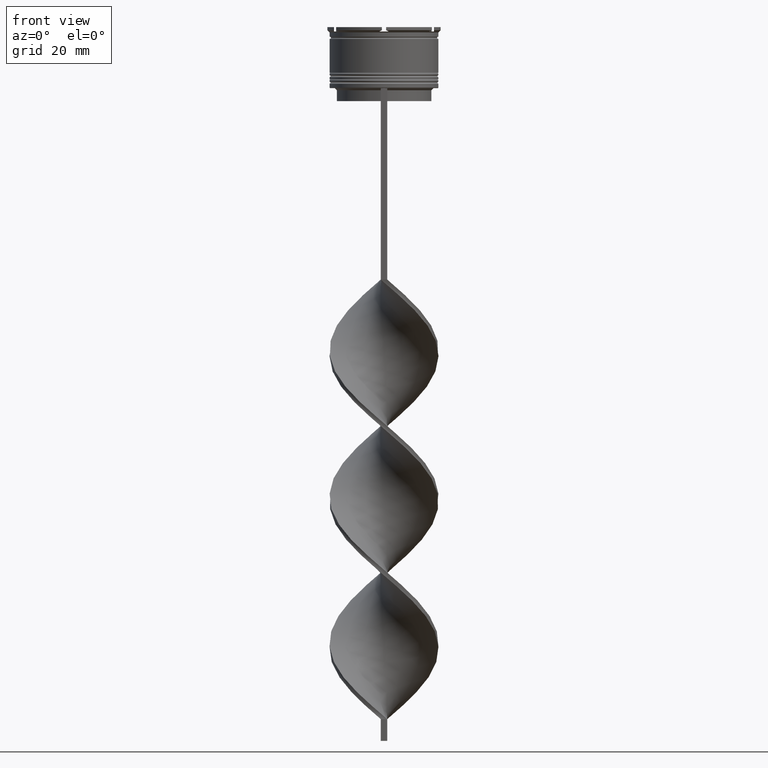
[diagram: clean part render]
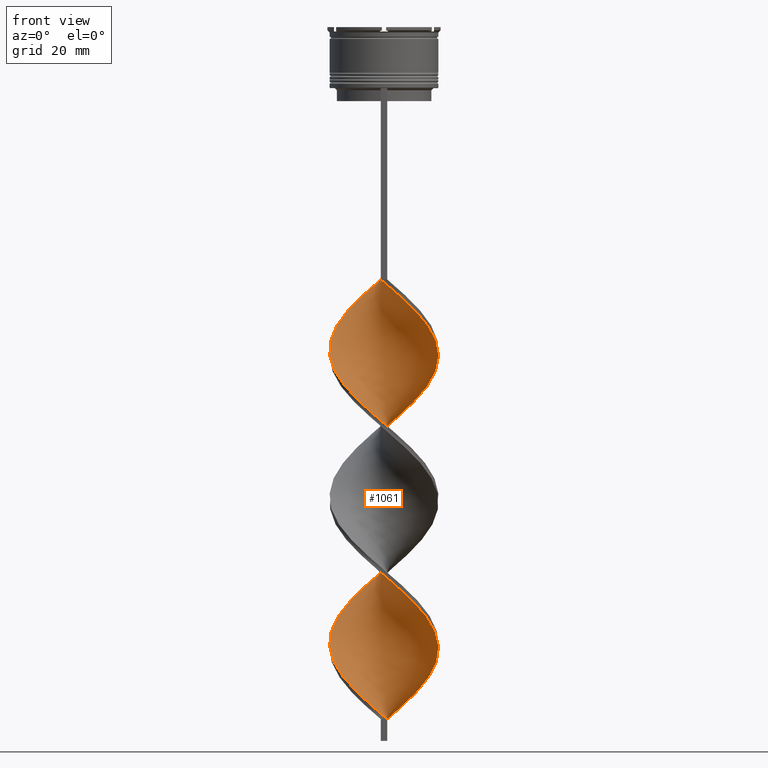
[diagram: same view with one face highlighted and labeled with its STEP entity id]
A machine part, front view. The second image highlights one B-rep face of the part: STEP entity #1061.
In plain terms, the highlighted face is a freeform B-spline surface patch.
Its self-contained STEP definition (entity closure, byte-faithful):
#6 = EDGE_CURVE ( 'NONE', #1071, #2113, #1179, .T. ) ;
#7 = CARTESIAN_POINT ( 'NONE',  ( 12.11996919947063311, 3.149420042465477021, -78.20000000000000284 ) ) ;
#23 = CARTESIAN_POINT ( 'NONE',  ( 7.954078399437126023, 9.671873490467488566, -152.2666666666666799 ) ) ;
#32 = CARTESIAN_POINT ( 'NONE',  ( 12.35312734465267681, -2.052497212371875435, -73.71111111111112280 ) ) ;
#45 = VERTEX_POINT ( 'NONE', #186 ) ;
#51 = CARTESIAN_POINT ( 'NONE',  ( 11.17548622105502254, -5.801146418745307010, -137.6777777777777487 ) ) ;
#66 = CARTESIAN_POINT ( 'NONE',  ( -12.50992003955415655, 0.5607143693194662770, -73.71111111111112280 ) ) ;
#67 = CARTESIAN_POINT ( 'NONE',  ( 7.954078399437126023, 9.671873490467488566, -152.2666666666666799 ) ) ;
#74 = CARTESIAN_POINT ( 'NONE',  ( 1.865285434671637432, -12.38277877728589260, -60.24444444444444713 ) ) ;
#83 = CARTESIAN_POINT ( 'NONE',  ( -11.65644370790820972, -4.576004816908207040, -78.20000000000000284 ) ) ;
#89 = CARTESIAN_POINT ( 'NONE',  ( -3.332506835772345077, 12.07091124105925317, -60.24444444444444713 ) ) ;
#107 = CARTESIAN_POINT ( 'NONE',  ( 11.65644370790820972, 4.576004816908206152, -111.8666666666666742 ) ) ;
#111 = CARTESIAN_POINT ( 'NONE',  ( 6.937523532635167633, -10.50788081788356543, -97.27777777777779988 ) ) ;
#119 = CARTESIAN_POINT ( 'NONE',  ( 12.45098658456435992, 1.875559948311562142, -77.07777777777778283 ) ) ;
#127 = CARTESIAN_POINT ( 'NONE',  ( -7.954078399437124247, 9.671873490467490342, -132.0666666666666629 ) ) ;
#131 = CARTESIAN_POINT ( 'NONE',  ( -12.13740119476140045, -3.350863215071107515, -77.07777777777778283 ) ) ;
#132 = CARTESIAN_POINT ( 'NONE',  ( 12.56885349454395495, -0.7541312096726379144, -142.1666666666666856 ) ) ;
#137 = CARTESIAN_POINT ( 'NONE',  ( 9.791158273236575837, 7.806773960377678456, -150.0222222222222115 ) ) ;
#138 = CARTESIAN_POINT ( 'NONE',  ( -4.399048945215547235, 11.72437070283936222, -96.15555555555556566 ) ) ;
#145 = CARTESIAN_POINT ( 'NONE',  ( -12.13740119476140045, -3.350863215071107515, -144.4111111111111541 ) ) ;
#153 = CARTESIAN_POINT ( 'NONE',  ( -4.399048945215555229, -11.72437070283936045, -154.5111111111111200 ) ) ;
#163 = CARTESIAN_POINT ( 'NONE',  ( 10.61168328023406460, 6.777681757703949650, -81.56666666666666288 ) ) ;
#171 = CARTESIAN_POINT ( 'NONE',  ( -7.849775853840625039, -9.845090710256194200, -151.1444444444444457 ) ) ;
#176 = CARTESIAN_POINT ( 'NONE',  ( -3.332506835772345077, 12.07091124105925317, -127.5777777777777828 ) ) ;
#183 = CARTESIAN_POINT ( 'NONE',  ( 3.166767928522319586, -12.18672937812252322, -128.7000000000000171 ) ) ;
#186 = CARTESIAN_POINT ( 'NONE',  ( 0.7500000000000013323, 12.50000000000000000, -159.0000000000000000 ) ) ;
#190 = CARTESIAN_POINT ( 'NONE',  ( 5.631329961908790871, 11.26201202755619768, -119.7222222222222143 ) ) ;
#193 = CARTESIAN_POINT ( 'NONE',  ( -11.78895181437690276, 4.423280136619393232, -137.6777777777777487 ) ) ;
#201 = CARTESIAN_POINT ( 'NONE',  ( 11.78895181437690276, 4.423280136619390568, -79.32222222222222285 ) ) ;
#207 = CARTESIAN_POINT ( 'NONE',  ( -5.631329961908789983, -11.26201202755619768, -153.3888888888889142 ) ) ;
#210 = CARTESIAN_POINT ( 'NONE',  ( 12.45098658456436169, -1.875559948311570357, -106.2555555555555742 ) ) ;
#220 = CARTESIAN_POINT ( 'NONE',  ( 12.11996919947063311, 3.149420042465477021, -145.5333333333333599 ) ) ;
#229 = CARTESIAN_POINT ( 'NONE',  ( 3.166767928522322695, 12.18672937812252322, -121.9666666666666544 ) ) ;
#289 = CARTESIAN_POINT ( 'NONE',  ( 0.7499999999999983347, -12.50000000000000000, -159.0000000000000000 ) ) ;
#297 = CARTESIAN_POINT ( 'NONE',  ( 1.865285434671637432, -12.38277877728589260, -60.24444444444444713 ) ) ;
#318 = FACE_OUTER_BOUND ( 'NONE', #2827, .T. ) ;
#332 = CARTESIAN_POINT ( 'NONE',  ( -3.166767928522321363, -12.18672937812252499, -88.29999999999998295 ) ) ;
#358 = CARTESIAN_POINT ( 'NONE',  ( -5.631329961908789983, -11.26201202755619768, -86.05555555555557135 ) ) ;
#364 = CARTESIAN_POINT ( 'NONE',  ( -12.45098658456435992, 1.875559948311566139, -72.58888888888890278 ) ) ;
#379 = CARTESIAN_POINT ( 'NONE',  ( 9.725148873555950146, 7.997891686931350996, -115.2333333333333343 ) ) ;
#386 = CARTESIAN_POINT ( 'NONE',  ( -8.970633266239078196, 8.835866163051415256, -65.85555555555555429 ) ) ;
#387 = CARTESIAN_POINT ( 'NONE',  ( 10.61168328023406637, 6.777681757703949650, -148.8999999999999488 ) ) ;
#400 = CARTESIAN_POINT ( 'NONE',  ( -1.865285434671642761, -12.38277877728589083, -89.42222222222223138 ) ) ;
#406 = CARTESIAN_POINT ( 'NONE',  ( 12.45098658456435992, 1.875559948311562142, -144.4111111111111541 ) ) ;
#420 = CARTESIAN_POINT ( 'NONE',  ( 11.20031754730548101, -5.600480947161677214, -102.8888888888888857 ) ) ;
#424 = CARTESIAN_POINT ( 'NONE',  ( -7.849775853840625039, -9.845090710256192423, -83.81111111111111711 ) ) ;
#427 = CARTESIAN_POINT ( 'NONE',  ( 6.937523532635175627, 10.50788081788355832, -153.3888888888889142 ) ) ;
#437 = CARTESIAN_POINT ( 'NONE',  ( 2.063802940820959275, 12.42117182355074334, -90.54444444444445139 ) ) ;
#445 = CARTESIAN_POINT ( 'NONE',  ( -9.791158273236570508, 7.806773960377682897, -134.3111111111111313 ) ) ;
#451 = CARTESIAN_POINT ( 'NONE',  ( 9.725148873555946594, -7.997891686931353661, -135.4333333333333371 ) ) ;
#460 = CARTESIAN_POINT ( 'NONE',  ( 11.17548622105502076, -5.801146418745307898, -70.34444444444444855 ) ) ;
#469 = CARTESIAN_POINT ( 'NONE',  ( 0.7499999999999983347, -12.50000000000000000, -159.0000000000000000 ) ) ;
#473 = CARTESIAN_POINT ( 'NONE',  ( -2.063802940820955723, 12.42117182355074334, -126.4555555555555770 ) ) ;
#478 = CARTESIAN_POINT ( 'NONE',  ( 3.332506835772350406, 12.07091124105925140, -156.7555555555555600 ) ) ;
#479 = CARTESIAN_POINT ( 'NONE',  ( 10.45031754730548279, -6.899519052838330779, -69.22222222222222854 ) ) ;
#484 = CARTESIAN_POINT ( 'NONE',  ( -5.769367131679452143, 11.11426573822566155, -129.8222222222222229 ) ) ;
#501 = CARTESIAN_POINT ( 'NONE',  ( 0.5638029408209559445, -12.57882817644925844, -126.4555555555555770 ) ) ;
#508 = CARTESIAN_POINT ( 'NONE',  ( -12.35312734465267859, -2.052497212371871438, -143.2888888888889198 ) ) ;
#512 = CARTESIAN_POINT ( 'NONE',  ( -11.65644370790820972, -4.576004816908207040, -145.5333333333333599 ) ) ;
#521 = CARTESIAN_POINT ( 'NONE',  ( -12.13740119476139867, 3.350863215071115508, -106.2555555555555742 ) ) ;
#530 = CARTESIAN_POINT ( 'NONE',  ( -0.5638029408209594973, -12.57882817644925844, -157.8777777777777942 ) ) ;
#537 = CARTESIAN_POINT ( 'NONE',  ( 12.56885349454395495, -0.7541312096726379144, -142.1666666666666856 ) ) ;
#578 = CARTESIAN_POINT ( 'NONE',  ( 4.601210730723739317, 11.72065065856775945, -88.29999999999998295 ) ) ;
#607 = CARTESIAN_POINT ( 'NONE',  ( 2.063802940820959275, 12.42117182355074334, -90.54444444444445139 ) ) ;
#649 = CARTESIAN_POINT ( 'NONE',  ( -8.970633266239078196, 8.835866163051415256, -65.85555555555555429 ) ) ;
#655 = CARTESIAN_POINT ( 'NONE',  ( 5.631329961908785542, -11.26201202755620123, -63.61111111111111427 ) ) ;
#656 = ORIENTED_EDGE ( 'NONE', *, *, #6, .T. ) ;
#667 = CARTESIAN_POINT ( 'NONE',  ( 11.78895181437689743, -4.423280136619401226, -104.0111111111111200 ) ) ;
#672 = CARTESIAN_POINT ( 'NONE',  ( -6.937523532635176515, -10.50788081788355832, -119.7222222222222143 ) ) ;
#690 = CARTESIAN_POINT ( 'NONE',  ( 0.7499999999999983347, -12.50000000000000000, -91.66666666666667140 ) ) ;
#699 = CARTESIAN_POINT ( 'NONE',  ( 6.740552907874703514, -10.55355136890619860, -132.0666666666666629 ) ) ;
#715 = CARTESIAN_POINT ( 'NONE',  ( 8.970633266239074644, -8.835866163051417033, -99.52222222222223991 ) ) ;
#717 = CARTESIAN_POINT ( 'NONE',  ( -9.791158273236577614, -7.806773960377676680, -116.3555555555555685 ) ) ;
#728 = CARTESIAN_POINT ( 'NONE',  ( -12.56885349454395495, -0.7541312096726363601, -74.83333333333334281 ) ) ;
#732 = CARTESIAN_POINT ( 'NONE',  ( -12.11996919947063134, 3.149420042465478353, -71.46666666666668277 ) ) ;
#733 = CARTESIAN_POINT ( 'NONE',  ( -10.61168328023406815, -6.777681757703947873, -115.2333333333333343 ) ) ;
#755 = CARTESIAN_POINT ( 'NONE',  ( -11.17548622105502076, -5.801146418745304345, -79.32222222222222285 ) ) ;
#757 = CARTESIAN_POINT ( 'NONE',  ( 5.631329961908785542, -11.26201202755620123, -130.9444444444444287 ) ) ;
#758 = CARTESIAN_POINT ( 'NONE',  ( 0.7499999999999983347, -12.50000000000000000, -159.0000000000000000 ) ) ;
#769 = CARTESIAN_POINT ( 'NONE',  ( -6.937523532635175627, -10.50788081788355832, -119.7222222222222143 ) ) ;
#778 = CARTESIAN_POINT ( 'NONE',  ( -11.78895181437690276, 4.423280136619394121, -137.6777777777777487 ) ) ;
#782 = CARTESIAN_POINT ( 'NONE',  ( -6.937523532635170298, 10.50788081788356187, -63.61111111111112137 ) ) ;
#783 = CARTESIAN_POINT ( 'NONE',  ( -0.7499999999999997780, 12.50000000000000000, -58.00000000000000000 ) ) ;
#790 = CARTESIAN_POINT ( 'NONE',  ( -3.166767928522318254, 12.18672937812252499, -95.03333333333331723 ) ) ;
#797 = CARTESIAN_POINT ( 'NONE',  ( -10.45031754730548457, -6.899519052838326338, -147.7777777777777715 ) ) ;
#805 = CARTESIAN_POINT ( 'NONE',  ( 9.791158273236575837, 7.806773960377678456, -82.68888888888889710 ) ) ;
#818 = CARTESIAN_POINT ( 'NONE',  ( 12.11996919947063134, -3.149420042465480130, -105.1333333333333400 ) ) ;
#830 = CARTESIAN_POINT ( 'NONE',  ( 12.13740119476140045, -3.350863215071111068, -72.58888888888890278 ) ) ;
#837 = CARTESIAN_POINT ( 'NONE',  ( -1.865285434671642761, -12.38277877728589083, -156.7555555555555600 ) ) ;
#842 = CARTESIAN_POINT ( 'NONE',  ( -9.791158273236570508, 7.806773960377682897, -134.3111111111111313 ) ) ;
#850 = CARTESIAN_POINT ( 'NONE',  ( -11.78895181437690454, -4.423280136619386127, -112.9888888888888943 ) ) ;
#860 = CARTESIAN_POINT ( 'NONE',  ( 11.20031754730548101, -5.600480947161677214, -102.8888888888888857 ) ) ;
#869 = CARTESIAN_POINT ( 'NONE',  ( 12.35312734465267681, -2.052497212371875435, -141.0444444444444514 ) ) ;
#878 = ORIENTED_EDGE ( 'NONE', *, *, #4118, .F. ) ;
#881 = CARTESIAN_POINT ( 'NONE',  ( -10.61168328023406637, 6.777681757703951426, -135.4333333333333371 ) ) ;
#910 = CARTESIAN_POINT ( 'NONE',  ( 4.399048945215551676, -11.72437070283936222, -62.48888888888889426 ) ) ;
#942 = CARTESIAN_POINT ( 'NONE',  ( -1.865285434671634324, 12.38277877728589260, -93.91111111111111143 ) ) ;
#965 = CARTESIAN_POINT ( 'NONE',  ( 6.937523532635175627, 10.50788081788355832, -86.05555555555557135 ) ) ;
#981 = CARTESIAN_POINT ( 'NONE',  ( 3.332506835772342857, -12.07091124105925317, -93.91111111111111143 ) ) ;
#1003 = CARTESIAN_POINT ( 'NONE',  ( 11.17548622105502432, 5.801146418745299016, -112.9888888888888943 ) ) ;
#1006 = CARTESIAN_POINT ( 'NONE',  ( 2.063802940820950838, -12.42117182355074689, -92.78888888888889142 ) ) ;
#1027 = CARTESIAN_POINT ( 'NONE',  ( 7.954078399437124247, -9.671873490467490342, -98.40000000000001990 ) ) ;
#1040 = CARTESIAN_POINT ( 'NONE',  ( -11.78895181437690276, 4.423280136619394121, -70.34444444444443434 ) ) ;
#1045 = CARTESIAN_POINT ( 'NONE',  ( -12.11996919947063311, -3.149420042465475689, -111.8666666666666742 ) ) ;
#1061 = ADVANCED_FACE ( 'NONE', ( #318 ), #3141, .T. ) ;
#1063 = CARTESIAN_POINT ( 'NONE',  ( -5.631329961908789983, -11.26201202755619946, -86.05555555555557135 ) ) ;
#1070 = CARTESIAN_POINT ( 'NONE',  ( -7.954078399437126912, -9.671873490467486789, -118.6000000000000085 ) ) ;
#1071 = VERTEX_POINT ( 'NONE', #3614 ) ;
#1079 = CARTESIAN_POINT ( 'NONE',  ( -12.50992003955415655, 0.5607143693194662770, -141.0444444444444514 ) ) ;
#1084 = CARTESIAN_POINT ( 'NONE',  ( -5.769367131679452143, 11.11426573822566155, -62.48888888888889426 ) ) ;
#1086 = CARTESIAN_POINT ( 'NONE',  ( 3.332506835772350406, 12.07091124105925140, -156.7555555555555600 ) ) ;
#1095 = CARTESIAN_POINT ( 'NONE',  ( 6.937523532635174739, 10.50788081788355832, -153.3888888888889142 ) ) ;
#1096 = CARTESIAN_POINT ( 'NONE',  ( 11.20031754730548457, 5.600480947161669221, -80.44444444444445708 ) ) ;
#1108 = CARTESIAN_POINT ( 'NONE',  ( 11.78895181437689743, -4.423280136619400338, -104.0111111111111057 ) ) ;
#1115 = CARTESIAN_POINT ( 'NONE',  ( -12.56885349454395495, 0.7541312096726393577, -108.5000000000000000 ) ) ;
#1125 = CARTESIAN_POINT ( 'NONE',  ( 11.17548622105502254, 5.801146418745299904, -112.9888888888888943 ) ) ;
#1132 = CARTESIAN_POINT ( 'NONE',  ( 6.740552907874703514, -10.55355136890619860, -132.0666666666666629 ) ) ;
#1139 = CARTESIAN_POINT ( 'NONE',  ( 0.5638029408209667137, 12.57882817644926021, -124.2111111111111370 ) ) ;
#1145 = CARTESIAN_POINT ( 'NONE',  ( -8.787462363698287149, -8.921491198593770378, -150.0222222222222115 ) ) ;
#1155 = CARTESIAN_POINT ( 'NONE',  ( -5.631329961908782877, 11.26201202755620479, -97.27777777777779988 ) ) ;
#1176 = CARTESIAN_POINT ( 'NONE',  ( 11.78895181437690276, 4.423280136619390568, -146.6555555555555657 ) ) ;
#1179 = LINE ( 'NONE', #1493, #2536 ) ;
#1185 = CARTESIAN_POINT ( 'NONE',  ( -12.50992003955415655, 0.5607143693194662770, -141.0444444444444514 ) ) ;
#1211 = CARTESIAN_POINT ( 'NONE',  ( 9.725148873555946594, -7.997891686931353661, -68.10000000000002274 ) ) ;
#1230 = CARTESIAN_POINT ( 'NONE',  ( 12.45098658456435992, 1.875559948311562142, -77.07777777777778283 ) ) ;
#1249 = CARTESIAN_POINT ( 'NONE',  ( 7.849775853840622375, -9.845090710256195976, -65.85555555555555429 ) ) ;
#1267 = CARTESIAN_POINT ( 'NONE',  ( -5.631329961908782877, 11.26201202755620123, -97.27777777777778567 ) ) ;
#1277 = ORIENTED_EDGE ( 'NONE', *, *, #3540, .F. ) ;
#1293 = CARTESIAN_POINT ( 'NONE',  ( -4.399048945215547235, 11.72437070283936222, -96.15555555555556566 ) ) ;
#1309 = CARTESIAN_POINT ( 'NONE',  ( 12.50992003955415832, -0.5607143693194732714, -107.3777777777777942 ) ) ;
#1312 = CARTESIAN_POINT ( 'NONE',  ( -6.740552907874705291, -10.55355136890619683, -84.93333333333333712 ) ) ;
#1313 = CARTESIAN_POINT ( 'NONE',  ( 12.50992003955415832, 0.5607143693194618361, -143.2888888888889198 ) ) ;
#1326 = CARTESIAN_POINT ( 'NONE',  ( 12.13740119476140222, 3.350863215071099965, -110.7444444444444542 ) ) ;
#1330 = CARTESIAN_POINT ( 'NONE',  ( -10.45031754730548457, -6.899519052838326338, -80.44444444444445708 ) ) ;
#1332 = CARTESIAN_POINT ( 'NONE',  ( -12.13740119476139867, 3.350863215071115508, -106.2555555555555742 ) ) ;
#1338 = CARTESIAN_POINT ( 'NONE',  ( 3.166767928522319586, -12.18672937812252322, -61.36666666666666003 ) ) ;
#1346 = CARTESIAN_POINT ( 'NONE',  ( -10.45031754730548457, -6.899519052838326338, -80.44444444444445708 ) ) ;
#1347 = CARTESIAN_POINT ( 'NONE',  ( -0.7499999999999997780, 12.50000000000000000, -58.00000000000000000 ) ) ;
#1376 = CARTESIAN_POINT ( 'NONE',  ( -12.56885349454395495, -0.7541312096726363601, -74.83333333333332860 ) ) ;
#1377 = CARTESIAN_POINT ( 'NONE',  ( -9.725148873555944817, 7.997891686931354549, -101.7666666666666515 ) ) ;
#1386 = CARTESIAN_POINT ( 'NONE',  ( -10.61168328023406637, -6.777681757703947873, -115.2333333333333343 ) ) ;
#1395 = CARTESIAN_POINT ( 'NONE',  ( 1.865285434671644538, 12.38277877728589083, -123.0888888888888886 ) ) ;
#1399 = CARTESIAN_POINT ( 'NONE',  ( -2.063802940820955723, 12.42117182355074334, -59.12222222222222712 ) ) ;
#1400 = CARTESIAN_POINT ( 'NONE',  ( 12.11996919947063311, 3.149420042465477021, -145.5333333333333599 ) ) ;
#1407 = CARTESIAN_POINT ( 'NONE',  ( 8.970633266239079973, 8.835866163051411704, -151.1444444444444457 ) ) ;
#1408 = CARTESIAN_POINT ( 'NONE',  ( -8.787462363698281820, 8.921491198593777483, -100.6444444444444599 ) ) ;
#1418 = CARTESIAN_POINT ( 'NONE',  ( -5.631329961908789983, -11.26201202755619946, -153.3888888888889142 ) ) ;
#1428 = CARTESIAN_POINT ( 'NONE',  ( 11.20031754730548457, 5.600480947161669221, -147.7777777777777715 ) ) ;
#1429 = CARTESIAN_POINT ( 'NONE',  ( -11.65644370790820794, 4.576004816908209705, -105.1333333333333400 ) ) ;
#1437 = CARTESIAN_POINT ( 'NONE',  ( -0.5638029408209594973, -12.57882817644926021, -157.8777777777777942 ) ) ;
#1450 = CARTESIAN_POINT ( 'NONE',  ( 4.399048945215551676, -11.72437070283936222, -129.8222222222222229 ) ) ;
#1456 = CARTESIAN_POINT ( 'NONE',  ( -8.970633266239078196, 8.835866163051415256, -133.1888888888889255 ) ) ;
#1460 = CARTESIAN_POINT ( 'NONE',  ( -4.601210730723736653, 11.72065065856775767, -128.7000000000000171 ) ) ;
#1468 = CARTESIAN_POINT ( 'NONE',  ( -1.865285434671634324, 12.38277877728589260, -93.91111111111111143 ) ) ;
#1471 = DIRECTION ( 'NONE',  ( 0.000000000000000000, 1.000000000000000000, 0.000000000000000000 ) ) ;
#1480 = CARTESIAN_POINT ( 'NONE',  ( 9.725148873555950146, 7.997891686931350108, -115.2333333333333343 ) ) ;
#1490 = CARTESIAN_POINT ( 'NONE',  ( 12.45098658456435992, 1.875559948311562142, -144.4111111111111256 ) ) ;
#1493 = CARTESIAN_POINT ( 'NONE',  ( -0.7499999999999997780, -12.50000000000000000, -58.00000000000000000 ) ) ;
#1504 = CARTESIAN_POINT ( 'NONE',  ( 8.787462363698288925, 8.921491198593768601, -116.3555555555555685 ) ) ;
#1526 = CARTESIAN_POINT ( 'NONE',  ( 3.166767928522319586, -12.18672937812252499, -61.36666666666666003 ) ) ;
#1598 = CARTESIAN_POINT ( 'NONE',  ( -12.50992003955415655, 0.5607143693194662770, -73.71111111111112280 ) ) ;
#1625 = CARTESIAN_POINT ( 'NONE',  ( 12.56885349454395495, 0.7541312096726349168, -108.5000000000000000 ) ) ;
#1632 = CARTESIAN_POINT ( 'NONE',  ( -12.35312734465267503, 2.052497212371882540, -107.3777777777777942 ) ) ;
#1645 = CARTESIAN_POINT ( 'NONE',  ( -4.601210730723737541, 11.72065065856775945, -61.36666666666666003 ) ) ;
#1649 = CARTESIAN_POINT ( 'NONE',  ( -11.20031754730548279, 5.600480947161673662, -69.22222222222222854 ) ) ;
#1650 = CARTESIAN_POINT ( 'NONE',  ( -12.50992003955415832, -0.5607143693194575063, -109.6222222222222342 ) ) ;
#1662 = CARTESIAN_POINT ( 'NONE',  ( -9.791158273236570508, 7.806773960377682897, -66.97777777777777430 ) ) ;
#1666 = CARTESIAN_POINT ( 'NONE',  ( 4.601210730723734876, -11.72065065856775945, -95.03333333333331723 ) ) ;
#1684 = CARTESIAN_POINT ( 'NONE',  ( 12.45098658456436169, -1.875559948311570135, -106.2555555555555742 ) ) ;
#1693 = CARTESIAN_POINT ( 'NONE',  ( 9.791158273236575837, 7.806773960377678456, -150.0222222222222115 ) ) ;
#1703 = CARTESIAN_POINT ( 'NONE',  ( -7.849775853840619710, 9.845090710256194200, -99.52222222222223991 ) ) ;
#1710 = CARTESIAN_POINT ( 'NONE',  ( -4.601210730723737541, 11.72065065856775945, -128.6999999999999886 ) ) ;
#1714 = CARTESIAN_POINT ( 'NONE',  ( 12.13740119476140045, -3.350863215071111068, -139.9222222222222172 ) ) ;
#1719 = CARTESIAN_POINT ( 'NONE',  ( -0.5638029408209508375, 12.57882817644926199, -92.78888888888889142 ) ) ;
#1728 = CARTESIAN_POINT ( 'NONE',  ( -11.17548622105502254, -5.801146418745303457, -146.6555555555555657 ) ) ;
#1731 = CARTESIAN_POINT ( 'NONE',  ( 10.61168328023406460, -6.777681757703953203, -101.7666666666666515 ) ) ;
#1737 = CARTESIAN_POINT ( 'NONE',  ( 6.937523532635174739, 10.50788081788355832, -86.05555555555557135 ) ) ;
#1745 = CARTESIAN_POINT ( 'NONE',  ( -2.063802940820956167, 12.42117182355074334, -126.4555555555555628 ) ) ;
#1760 = CARTESIAN_POINT ( 'NONE',  ( -12.45098658456436169, -1.875559948311554592, -110.7444444444444542 ) ) ;
#1770 = CARTESIAN_POINT ( 'NONE',  ( 5.631329961908790871, 11.26201202755619946, -119.7222222222222143 ) ) ;
#1777 = CARTESIAN_POINT ( 'NONE',  ( 6.740552907874703514, -10.55355136890619860, -64.73333333333333428 ) ) ;
#1799 = CARTESIAN_POINT ( 'NONE',  ( 11.17548622105502076, -5.801146418745307898, -137.6777777777777487 ) ) ;
#1810 = CARTESIAN_POINT ( 'NONE',  ( -11.20031754730548279, 5.600480947161673662, -136.5555555555555713 ) ) ;
#1873 = CARTESIAN_POINT ( 'NONE',  ( -0.5638029408209509485, 12.57882817644926376, -92.78888888888889142 ) ) ;
#1908 = CARTESIAN_POINT ( 'NONE',  ( -5.769367131679452143, 11.11426573822566155, -62.48888888888889426 ) ) ;
#1924 = CARTESIAN_POINT ( 'NONE',  ( 5.769367131679455696, 11.11426573822565977, -154.5111111111111200 ) ) ;
#1927 = CARTESIAN_POINT ( 'NONE',  ( 9.791158273236570508, -7.806773960377686450, -100.6444444444444599 ) ) ;
#1933 = CARTESIAN_POINT ( 'NONE',  ( -4.601210730723740205, -11.72065065856775945, -121.9666666666666544 ) ) ;
#1951 = CARTESIAN_POINT ( 'NONE',  ( 8.787462363698288925, 8.921491198593768601, -116.3555555555555685 ) ) ;
#1957 = CARTESIAN_POINT ( 'NONE',  ( -0.7499999999999997780, 12.50000000000000000, -58.00000000000000000 ) ) ;
#1958 = CARTESIAN_POINT ( 'NONE',  ( 11.78895181437690276, 4.423280136619390568, -146.6555555555555657 ) ) ;
#1966 = CARTESIAN_POINT ( 'NONE',  ( 0.5638029408209559445, -12.57882817644925844, -59.12222222222222712 ) ) ;
#1978 = CARTESIAN_POINT ( 'NONE',  ( -9.791158273236570508, 7.806773960377682897, -66.97777777777777430 ) ) ;
#1979 = CARTESIAN_POINT ( 'NONE',  ( -8.970633266239085302, -8.835866163051408151, -117.4777777777777885 ) ) ;
#1990 = CARTESIAN_POINT ( 'NONE',  ( -11.20031754730548279, 5.600480947161673662, -69.22222222222222854 ) ) ;
#1994 = CARTESIAN_POINT ( 'NONE',  ( 1.865285434671637432, -12.38277877728589260, -127.5777777777777828 ) ) ;
#2001 = CARTESIAN_POINT ( 'NONE',  ( 0.7500000000000013323, 12.50000000000000000, -159.0000000000000000 ) ) ;
#2016 = CARTESIAN_POINT ( 'NONE',  ( -0.7499999999999997780, -12.50000000000000000, -125.3333333333333570 ) ) ;
#2024 = CARTESIAN_POINT ( 'NONE',  ( -5.769367131679462801, -11.11426573822565622, -120.8444444444444485 ) ) ;
#2032 = CARTESIAN_POINT ( 'NONE',  ( -11.65644370790820972, -4.576004816908207040, -145.5333333333333599 ) ) ;
#2037 = CARTESIAN_POINT ( 'NONE',  ( -11.65644370790820972, -4.576004816908207040, -78.20000000000000284 ) ) ;
#2038 = CARTESIAN_POINT ( 'NONE',  ( 2.063802940820959275, 12.42117182355074334, -157.8777777777777942 ) ) ;
#2046 = CARTESIAN_POINT ( 'NONE',  ( -10.45031754730548101, 6.899519052838334332, -102.8888888888888857 ) ) ;
#2053 = CARTESIAN_POINT ( 'NONE',  ( 4.399048945215562334, 11.72437070283935689, -120.8444444444444485 ) ) ;
#2056 = CARTESIAN_POINT ( 'NONE',  ( 4.399048945215562334, 11.72437070283935689, -120.8444444444444485 ) ) ;
#2066 = CARTESIAN_POINT ( 'NONE',  ( 3.332506835772350406, 12.07091124105925140, -89.42222222222223138 ) ) ;
#2074 = CARTESIAN_POINT ( 'NONE',  ( -8.787462363698287149, -8.921491198593770378, -150.0222222222222115 ) ) ;
#2078 = CARTESIAN_POINT ( 'NONE',  ( 10.45031754730548990, 6.899519052838320121, -114.1111111111111285 ) ) ;
#2089 = CARTESIAN_POINT ( 'NONE',  ( 12.56885349454395495, -0.7541312096726379144, -74.83333333333332860 ) ) ;
#2096 = CARTESIAN_POINT ( 'NONE',  ( -0.7499999999999997780, 12.50000000000000000, -125.3333333333333570 ) ) ;
#2099 = CARTESIAN_POINT ( 'NONE',  ( -11.17548622105502076, -5.801146418745304345, -146.6555555555555657 ) ) ;
#2109 = CARTESIAN_POINT ( 'NONE',  ( -12.50992003955415832, -0.5607143693194575063, -109.6222222222222342 ) ) ;
#2113 = VERTEX_POINT ( 'NONE', #1347 ) ;
#2120 = CARTESIAN_POINT ( 'NONE',  ( 12.56885349454395495, 0.7541312096726348058, -108.5000000000000000 ) ) ;
#2146 = CARTESIAN_POINT ( 'NONE',  ( 10.61168328023406637, 6.777681757703949650, -81.56666666666664867 ) ) ;
#2183 = CARTESIAN_POINT ( 'NONE',  ( 11.17548622105502254, -5.801146418745307010, -70.34444444444443434 ) ) ;
#2202 = CARTESIAN_POINT ( 'NONE',  ( 3.332506835772350406, 12.07091124105925140, -89.42222222222223138 ) ) ;
#2220 = CARTESIAN_POINT ( 'NONE',  ( -11.17548622105502254, -5.801146418745303457, -79.32222222222222285 ) ) ;
#2225 = CARTESIAN_POINT ( 'NONE',  ( -6.740552907874702626, 10.55355136890619860, -98.40000000000001990 ) ) ;
#2240 = CARTESIAN_POINT ( 'NONE',  ( 4.601210730723735765, -11.72065065856776123, -95.03333333333331723 ) ) ;
#2246 = CARTESIAN_POINT ( 'NONE',  ( -11.17548622105501721, 5.801146418745314115, -104.0111111111111200 ) ) ;
#2260 = CARTESIAN_POINT ( 'NONE',  ( -12.35312734465267859, -2.052497212371871438, -75.95555555555554861 ) ) ;
#2267 = CARTESIAN_POINT ( 'NONE',  ( 3.332506835772342857, -12.07091124105925317, -93.91111111111111143 ) ) ;
#2284 = CARTESIAN_POINT ( 'NONE',  ( -2.063802940820956167, 12.42117182355074334, -59.12222222222222712 ) ) ;
#2290 = CARTESIAN_POINT ( 'NONE',  ( 5.769367131679449479, -11.11426573822566510, -96.15555555555556566 ) ) ;
#2304 = CARTESIAN_POINT ( 'NONE',  ( -9.725148873555948370, -7.997891686931350996, -81.56666666666664867 ) ) ;
#2308 = CARTESIAN_POINT ( 'NONE',  ( -11.78895181437690276, 4.423280136619393232, -70.34444444444444855 ) ) ;
#2309 = CARTESIAN_POINT ( 'NONE',  ( -3.332506835772352183, -12.07091124105925140, -123.0888888888888886 ) ) ;
#2322 = CARTESIAN_POINT ( 'NONE',  ( -11.20031754730548279, 5.600480947161673662, -136.5555555555555713 ) ) ;
#2327 = CARTESIAN_POINT ( 'NONE',  ( -7.954078399437126912, -9.671873490467486789, -118.6000000000000085 ) ) ;
#2338 = CARTESIAN_POINT ( 'NONE',  ( 8.970633266239079973, 8.835866163051411704, -83.81111111111111711 ) ) ;
#2348 = CARTESIAN_POINT ( 'NONE',  ( -12.56885349454395495, -0.7541312096726363601, -142.1666666666666856 ) ) ;
#2356 = CARTESIAN_POINT ( 'NONE',  ( 0.7500000000000013323, 12.50000000000000000, -159.0000000000000000 ) ) ;
#2366 = CARTESIAN_POINT ( 'NONE',  ( 9.725148873555948370, -7.997891686931351884, -68.10000000000000853 ) ) ;
#2375 = CARTESIAN_POINT ( 'NONE',  ( 12.50992003955415832, -0.5607143693194732714, -107.3777777777777942 ) ) ;
#2381 = CARTESIAN_POINT ( 'NONE',  ( 2.063802940820959275, 12.42117182355074334, -157.8777777777777942 ) ) ;
#2382 = CARTESIAN_POINT ( 'NONE',  ( -12.35312734465267503, 2.052497212371882540, -107.3777777777777942 ) ) ;
#2392 = CARTESIAN_POINT ( 'NONE',  ( -12.35312734465267859, -2.052497212371871438, -143.2888888888889198 ) ) ;
#2402 = CARTESIAN_POINT ( 'NONE',  ( -3.332506835772352183, -12.07091124105925140, -123.0888888888888886 ) ) ;
#2415 = CARTESIAN_POINT ( 'NONE',  ( 12.13740119476140222, 3.350863215071099965, -110.7444444444444542 ) ) ;
#2431 = CARTESIAN_POINT ( 'NONE',  ( -11.17548622105501721, 5.801146418745314115, -104.0111111111111057 ) ) ;
#2450 = CARTESIAN_POINT ( 'NONE',  ( 11.65644370790820794, -4.576004816908208817, -138.8000000000000114 ) ) ;
#2460 = CARTESIAN_POINT ( 'NONE',  ( -12.13740119476140045, -3.350863215071107515, -144.4111111111111256 ) ) ;
#2489 = CARTESIAN_POINT ( 'NONE',  ( -0.7499999999999997780, -12.50000000000000000, -58.00000000000000000 ) ) ;
#2508 = CARTESIAN_POINT ( 'NONE',  ( 8.970633266239079973, 8.835866163051411704, -83.81111111111111711 ) ) ;
#2520 = CARTESIAN_POINT ( 'NONE',  ( 0.7500000000000003331, 4.166666666666667851, -159.0000000000000000 ) ) ;
#2527 = CARTESIAN_POINT ( 'NONE',  ( 11.20031754730548457, 5.600480947161669221, -80.44444444444445708 ) ) ;
#2536 = VECTOR ( 'NONE', #1471, 1000.000000000000000 ) ;
#2551 = CARTESIAN_POINT ( 'NONE',  ( 11.78895181437690276, 4.423280136619390568, -79.32222222222222285 ) ) ;
#2588 = CARTESIAN_POINT ( 'NONE',  ( -6.937523532635171186, 10.50788081788356187, -63.61111111111111427 ) ) ;
#2592 = CARTESIAN_POINT ( 'NONE',  ( -3.166767928522320918, -12.18672937812252322, -88.29999999999998295 ) ) ;
#2593 = CARTESIAN_POINT ( 'NONE',  ( 11.65644370790820794, -4.576004816908208817, -138.8000000000000114 ) ) ;
#2609 = CARTESIAN_POINT ( 'NONE',  ( -0.5638029408209594973, -12.57882817644925844, -90.54444444444445139 ) ) ;
#2610 = CARTESIAN_POINT ( 'NONE',  ( -11.65644370790820794, 4.576004816908209705, -105.1333333333333400 ) ) ;
#2623 = CARTESIAN_POINT ( 'NONE',  ( 5.769367131679449479, -11.11426573822566510, -96.15555555555556566 ) ) ;
#2630 = CARTESIAN_POINT ( 'NONE',  ( -10.45031754730548101, 6.899519052838334332, -102.8888888888888857 ) ) ;
#2635 = B_SPLINE_CURVE_WITH_KNOTS ( 'NONE', 3,
 ( #4082, #2520, #3764, #289 ),
 .UNSPECIFIED., .F., .F.,
 ( 4, 4 ),
 ( 0.000000000000000000, 1.000000000000000000 ),
 .UNSPECIFIED. ) ;
#2648 = CARTESIAN_POINT ( 'NONE',  ( -12.35312734465267859, -2.052497212371871438, -75.95555555555554861 ) ) ;
#2656 = CARTESIAN_POINT ( 'NONE',  ( 11.65644370790820794, -4.576004816908208817, -71.46666666666668277 ) ) ;
#2670 = CARTESIAN_POINT ( 'NONE',  ( 0.5638029408209559445, -12.57882817644926021, -126.4555555555555628 ) ) ;
#2679 = CARTESIAN_POINT ( 'NONE',  ( -11.20031754730548634, -5.600480947161663003, -114.1111111111111285 ) ) ;
#2694 = CARTESIAN_POINT ( 'NONE',  ( -3.166767928522320918, -12.18672937812252322, -155.6333333333333542 ) ) ;
#2701 = CARTESIAN_POINT ( 'NONE',  ( 4.601210730723738429, 11.72065065856775767, -155.6333333333333542 ) ) ;
#2702 = CARTESIAN_POINT ( 'NONE',  ( -9.725148873555946594, 7.997891686931353661, -101.7666666666666515 ) ) ;
#2722 = CARTESIAN_POINT ( 'NONE',  ( 5.769367131679455696, 11.11426573822565977, -87.17777777777779136 ) ) ;
#2728 = CARTESIAN_POINT ( 'NONE',  ( -10.61168328023406815, 6.777681757703951426, -135.4333333333333371 ) ) ;
#2732 = CARTESIAN_POINT ( 'NONE',  ( -8.970633266239078196, 8.835866163051415256, -133.1888888888889255 ) ) ;
#2740 = CARTESIAN_POINT ( 'NONE',  ( 5.631329961908785542, -11.26201202755620479, -63.61111111111112137 ) ) ;
#2753 = CARTESIAN_POINT ( 'NONE',  ( 0.7499999999999983347, -12.50000000000000000, -159.0000000000000000 ) ) ;
#2764 = CARTESIAN_POINT ( 'NONE',  ( 8.787462363698281820, -8.921491198593773930, -134.3111111111111313 ) ) ;
#2773 = CARTESIAN_POINT ( 'NONE',  ( -0.7499999999999997780, 12.50000000000000000, -125.3333333333333570 ) ) ;
#2793 = CARTESIAN_POINT ( 'NONE',  ( 12.13740119476140045, -3.350863215071111068, -72.58888888888890278 ) ) ;
#2814 = CARTESIAN_POINT ( 'NONE',  ( 5.769367131679455696, 11.11426573822565977, -87.17777777777779136 ) ) ;
#2827 = EDGE_LOOP ( 'NONE', ( #656, #3866, #1277, #878 ) ) ;
#2837 = CARTESIAN_POINT ( 'NONE',  ( 12.50992003955415832, 0.5607143693194618361, -75.95555555555554861 ) ) ;
#2845 =( BOUNDED_CURVE ( )  B_SPLINE_CURVE ( 2, ( #3568, #1966, #74, #1338, #3317, #2740, #1777, #3714, #3335, #2366, #479, #460, #2656, #830, #2973, #2089, #3057, #119, #3671, #201, #1096, #163, #805, #2338, #3654, #1737, #2722, #4031, #2066, #437, #3015, #1719, #1468, #790, #138, #1155, #3381, #1703, #1408, #2702, #2046, #2431, #1429, #521, #2382, #1115, #2109, #1760, #3631, #850, #2679, #1386, #3995, #3947, #1070, #769, #2024, #2993, #2402, #3974, #3360, #501, #3040, #183, #1450, #4011, #1132, #3692, #2764, #4057, #3398, #1799, #2450, #3732, #869, #537, #3077, #1490, #220, #1176, #1428, #3014, #137, #1407, #23, #1095, #1924, #2701, #478, #2381, #2001 ),
 .UNSPECIFIED., .F., .T. ) 
 B_SPLINE_CURVE_WITH_KNOTS ( ( 3, 2, 2, 2, 2, 2, 2, 2, 2, 2, 2, 2, 2, 2, 2, 2, 2, 2, 2, 2, 2, 2, 2, 2, 2, 2, 2, 2, 2, 2, 2, 2, 2, 2, 2, 2, 2, 2, 2, 2, 2, 2, 2, 2, 2, 3 ),
 ( 0.000000000000000000, 0.01666666666666666644, 0.03333333333333333287, 0.05000000000000000971, 0.06666666666666666574, 0.08333333333333332871, 0.1000000000000000194, 0.1166666666666666546, 0.1333333333333333315, 0.1499999999999999944, 0.1666666666666666574, 0.1833333333333333204, 0.2000000000000000389, 0.2166666666666666741, 0.2333333333333333093, 0.2500000000000000000, 0.2666666666666666630, 0.2833333333333333259, 0.2999999999999999889, 0.3166666666666666519, 0.3333333333333333148, 0.3499999999999999223, 0.3666666666666666408, 0.3833333333333333592, 0.4000000000000000777, 0.4166666666666666852, 0.4333333333333333481, 0.4500000000000000111, 0.4666666666666666186, 0.4833333333333333370, 0.5000000000000000000, 0.5166666666666667185, 0.5333333333333333259, 0.5500000000000000444, 0.5666666666666666519, 0.5833333333333333703, 0.5999999999999999778, 0.6166666666666666963, 0.6333333333333333037, 0.6500000000000000222, 0.6666666666666666297, 0.6833333333333332371, 0.6999999999999998446, 0.7166666666666666741, 0.7333333333333332815, 0.7500000000000000000 ),
 .UNSPECIFIED. ) 
 CURVE ( )  GEOMETRIC_REPRESENTATION_ITEM ( )  RATIONAL_B_SPLINE_CURVE ( ( 1.000000000000000000, 0.9945218953682732899, 1.000000000000000000, 0.9945218953682732899, 1.000000000000000000, 0.9945218953682732899, 1.000000000000000000, 0.9945218953682732899, 1.000000000000000000, 0.9945218953682732899, 1.000000000000000000, 0.9945218953682732899, 1.000000000000000000, 0.9945218953682732899, 1.000000000000000000, 0.9945218953682732899, 1.000000000000000000, 0.9945218953682732899, 1.000000000000000000, 0.9945218953682732899, 1.000000000000000000, 0.9945218953682732899, 1.000000000000000000, 0.9945218953682732899, 1.000000000000000000, 0.9945218953682732899, 1.000000000000000000, 0.9945218953682732899, 1.000000000000000000, 0.9945218953682732899, 1.000000000000000000, 0.9945218953682732899, 1.000000000000000000, 0.9945218953682732899, 1.000000000000000000, 0.9945218953682732899, 1.000000000000000000, 0.9945218953682732899, 1.000000000000000000, 0.9945218953682732899, 1.000000000000000000, 0.9945218953682732899, 1.000000000000000000, 0.9945218953682732899, 1.000000000000000000, 0.9945218953682732899, 1.000000000000000000, 0.9945218953682732899, 1.000000000000000000, 0.9945218953682732899, 1.000000000000000000, 0.9945218953682732899, 1.000000000000000000, 0.9945218953682732899, 1.000000000000000000, 0.9945218953682732899, 1.000000000000000000, 0.9945218953682732899, 1.000000000000000000, 0.9945218953682732899, 1.000000000000000000, 0.9945218953682732899, 1.000000000000000000, 0.9945218953682732899, 1.000000000000000000, 0.9945218953682732899, 1.000000000000000000, 0.9945218953682732899, 1.000000000000000000, 0.9945218953682732899, 1.000000000000000000, 0.9945218953682732899, 1.000000000000000000, 0.9945218953682732899, 1.000000000000000000, 0.9945218953682732899, 1.000000000000000000, 0.9945218953682732899, 1.000000000000000000, 0.9945218953682732899, 1.000000000000000000, 0.9945218953682732899, 1.000000000000000000, 0.9945218953682732899, 1.000000000000000000, 0.9945218953682732899, 1.000000000000000000, 0.9945218953682732899, 1.000000000000000000, 0.9945218953682732899, 1.000000000000000000 ) ) 
 REPRESENTATION_ITEM ( '' )  );
#2867 = VERTEX_POINT ( 'NONE', #758 ) ;
#2875 = CARTESIAN_POINT ( 'NONE',  ( 6.937523532635168522, -10.50788081788356543, -97.27777777777778567 ) ) ;
#2883 = CARTESIAN_POINT ( 'NONE',  ( 6.740552907874703514, -10.55355136890619860, -64.73333333333333428 ) ) ;
#2901 = CARTESIAN_POINT ( 'NONE',  ( 12.35312734465267859, 2.052497212371866997, -109.6222222222222342 ) ) ;
#2906 = CARTESIAN_POINT ( 'NONE',  ( 4.399048945215551676, -11.72437070283936222, -129.8222222222222229 ) ) ;
#2921 = CARTESIAN_POINT ( 'NONE',  ( -7.849775853840625039, -9.845090710256194200, -83.81111111111111711 ) ) ;
#2924 = CARTESIAN_POINT ( 'NONE',  ( -7.954078399437124247, 9.671873490467490342, -64.73333333333333428 ) ) ;
#2926 = CARTESIAN_POINT ( 'NONE',  ( 8.970633266239079973, 8.835866163051411704, -151.1444444444444457 ) ) ;
#2939 = CARTESIAN_POINT ( 'NONE',  ( -12.13740119476140045, -3.350863215071107515, -77.07777777777778283 ) ) ;
#2962 = CARTESIAN_POINT ( 'NONE',  ( -12.11996919947063134, 3.149420042465478353, -71.46666666666668277 ) ) ;
#2967 = CARTESIAN_POINT ( 'NONE',  ( -9.725148873555948370, -7.997891686931350108, -81.56666666666666288 ) ) ;
#2973 = CARTESIAN_POINT ( 'NONE',  ( 12.35312734465267681, -2.052497212371875435, -73.71111111111112280 ) ) ;
#2983 = CARTESIAN_POINT ( 'NONE',  ( 6.740552907874707067, 10.55355136890619860, -118.6000000000000085 ) ) ;
#2986 = CARTESIAN_POINT ( 'NONE',  ( -1.865285434671642761, -12.38277877728589083, -89.42222222222223138 ) ) ;
#2987 = CARTESIAN_POINT ( 'NONE',  ( 12.35312734465267681, -2.052497212371875435, -141.0444444444444514 ) ) ;
#2993 = CARTESIAN_POINT ( 'NONE',  ( -4.601210730723740205, -11.72065065856775767, -121.9666666666666544 ) ) ;
#3004 = CARTESIAN_POINT ( 'NONE',  ( -6.740552907874705291, -10.55355136890619683, -152.2666666666666799 ) ) ;
#3008 =( BOUNDED_CURVE ( )  B_SPLINE_CURVE ( 2, ( #1957, #1399, #89, #3940, #1084, #782, #2924, #386, #1978, #3899, #1649, #2308, #732, #364, #66, #1376, #2648, #131, #2037, #755, #1330, #2967, #3922, #424, #1312, #1063, #3619, #2592, #2986, #2609, #3878, #1006, #2267, #1666, #2290, #111, #1027, #715, #3723, #1731, #860, #1108, #818, #210, #2375, #2120, #3050, #2415, #3665, #1125, #2078, #1480, #1504, #3704, #3328, #1770, #2056, #229, #4005, #3029, #2773, #473, #176, #1460, #3681, #3408, #3742, #2732, #842, #881, #1810, #193, #4067, #3374, #1185, #3090, #2392, #2460, #512, #2099, #797, #3346, #1145, #4019, #3004, #1418, #153, #2694, #3390, #530, #2753 ),
 .UNSPECIFIED., .F., .T. ) 
 B_SPLINE_CURVE_WITH_KNOTS ( ( 3, 2, 2, 2, 2, 2, 2, 2, 2, 2, 2, 2, 2, 2, 2, 2, 2, 2, 2, 2, 2, 2, 2, 2, 2, 2, 2, 2, 2, 2, 2, 2, 2, 2, 2, 2, 2, 2, 2, 2, 2, 2, 2, 2, 2, 3 ),
 ( 0.000000000000000000, 0.01666666666666666644, 0.03333333333333333287, 0.05000000000000000971, 0.06666666666666666574, 0.08333333333333332871, 0.1000000000000000194, 0.1166666666666666546, 0.1333333333333333315, 0.1499999999999999944, 0.1666666666666666574, 0.1833333333333333204, 0.2000000000000000389, 0.2166666666666666741, 0.2333333333333333093, 0.2500000000000000000, 0.2666666666666666630, 0.2833333333333333259, 0.2999999999999999889, 0.3166666666666666519, 0.3333333333333333148, 0.3499999999999999223, 0.3666666666666666408, 0.3833333333333333592, 0.4000000000000000777, 0.4166666666666666852, 0.4333333333333333481, 0.4500000000000000111, 0.4666666666666666186, 0.4833333333333333370, 0.5000000000000000000, 0.5166666666666667185, 0.5333333333333333259, 0.5500000000000000444, 0.5666666666666666519, 0.5833333333333333703, 0.5999999999999999778, 0.6166666666666666963, 0.6333333333333333037, 0.6500000000000000222, 0.6666666666666666297, 0.6833333333333332371, 0.6999999999999998446, 0.7166666666666666741, 0.7333333333333332815, 0.7500000000000000000 ),
 .UNSPECIFIED. ) 
 CURVE ( )  GEOMETRIC_REPRESENTATION_ITEM ( )  RATIONAL_B_SPLINE_CURVE ( ( 1.000000000000000000, 0.9945218953682732899, 1.000000000000000000, 0.9945218953682732899, 1.000000000000000000, 0.9945218953682732899, 1.000000000000000000, 0.9945218953682732899, 1.000000000000000000, 0.9945218953682732899, 1.000000000000000000, 0.9945218953682732899, 1.000000000000000000, 0.9945218953682732899, 1.000000000000000000, 0.9945218953682732899, 1.000000000000000000, 0.9945218953682732899, 1.000000000000000000, 0.9945218953682732899, 1.000000000000000000, 0.9945218953682732899, 1.000000000000000000, 0.9945218953682732899, 1.000000000000000000, 0.9945218953682732899, 1.000000000000000000, 0.9945218953682732899, 1.000000000000000000, 0.9945218953682732899, 1.000000000000000000, 0.9945218953682732899, 1.000000000000000000, 0.9945218953682732899, 1.000000000000000000, 0.9945218953682732899, 1.000000000000000000, 0.9945218953682732899, 1.000000000000000000, 0.9945218953682732899, 1.000000000000000000, 0.9945218953682732899, 1.000000000000000000, 0.9945218953682732899, 1.000000000000000000, 0.9945218953682732899, 1.000000000000000000, 0.9945218953682732899, 1.000000000000000000, 0.9945218953682732899, 1.000000000000000000, 0.9945218953682732899, 1.000000000000000000, 0.9945218953682732899, 1.000000000000000000, 0.9945218953682732899, 1.000000000000000000, 0.9945218953682732899, 1.000000000000000000, 0.9945218953682732899, 1.000000000000000000, 0.9945218953682732899, 1.000000000000000000, 0.9945218953682732899, 1.000000000000000000, 0.9945218953682732899, 1.000000000000000000, 0.9945218953682732899, 1.000000000000000000, 0.9945218953682732899, 1.000000000000000000, 0.9945218953682732899, 1.000000000000000000, 0.9945218953682732899, 1.000000000000000000, 0.9945218953682732899, 1.000000000000000000, 0.9945218953682732899, 1.000000000000000000, 0.9945218953682732899, 1.000000000000000000, 0.9945218953682732899, 1.000000000000000000, 0.9945218953682732899, 1.000000000000000000, 0.9945218953682732899, 1.000000000000000000, 0.9945218953682732899, 1.000000000000000000, 0.9945218953682732899, 1.000000000000000000 ) ) 
 REPRESENTATION_ITEM ( '' )  );
#3014 = CARTESIAN_POINT ( 'NONE',  ( 10.61168328023406460, 6.777681757703949650, -148.8999999999999773 ) ) ;
#3015 = CARTESIAN_POINT ( 'NONE',  ( 0.7500000000000013323, 12.50000000000000000, -91.66666666666667140 ) ) ;
#3023 = CARTESIAN_POINT ( 'NONE',  ( -10.45031754730548457, -6.899519052838326338, -147.7777777777777715 ) ) ;
#3029 = CARTESIAN_POINT ( 'NONE',  ( 0.5638029408209667137, 12.57882817644925844, -124.2111111111111370 ) ) ;
#3040 = CARTESIAN_POINT ( 'NONE',  ( 1.865285434671637432, -12.38277877728589260, -127.5777777777777828 ) ) ;
#3050 = CARTESIAN_POINT ( 'NONE',  ( 12.35312734465267859, 2.052497212371866997, -109.6222222222222342 ) ) ;
#3057 = CARTESIAN_POINT ( 'NONE',  ( 12.50992003955415832, 0.5607143693194618361, -75.95555555555554861 ) ) ;
#3077 = CARTESIAN_POINT ( 'NONE',  ( 12.50992003955415832, 0.5607143693194618361, -143.2888888888889198 ) ) ;
#3090 = CARTESIAN_POINT ( 'NONE',  ( -12.56885349454395495, -0.7541312096726363601, -142.1666666666666856 ) ) ;
#3135 = CARTESIAN_POINT ( 'NONE',  ( 8.787462363698281820, -8.921491198593773930, -66.97777777777777430 ) ) ;
#3141 =( BOUNDED_SURFACE ( )  B_SPLINE_SURFACE ( 1, 2, ( 
 ( #2489, #3830, #297, #1526, #910, #655, #2883, #1249, #3135, #1211, #4134, #2183, #3856, #2793, #32, #3771, #2837, #1230, #7, #2551, #2527, #2146, #3471, #2508, #3455, #965, #2814, #578, #2202, #607, #3807, #1873, #942, #3493, #1293, #1267, #2225, #3517, #3199, #1377, #2630, #2246, #2610, #1332, #1632, #3941, #1650, #3536, #1045, #3581, #3924, #733, #717, #1979, #2327, #672, #3558, #1933, #2309, #3621, #2016, #2670, #1994, #3599, #2906, #757, #699, #3311, #3266, #451, #3223, #51, #2593, #1714, #2987, #132, #1313, #406, #1400, #1958, #3285, #387, #1693, #2926, #67, #427, #3646, #3962, #1086, #2038, #2356 ),
 ( #783, #2284, #3575, #1645, #1908, #2588, #3260, #649, #1662, #3849, #1990, #1040, #2962, #3875, #1598, #728, #2260, #2939, #83, #2220, #1346, #2304, #3510, #2921, #3593, #358, #3822, #332, #400, #3192, #690, #3894, #981, #2240, #2623, #2875, #3918, #3530, #1927, #3278, #420, #667, #3215, #1684, #1309, #1625, #2901, #1326, #107, #1003, #3551, #379, #1951, #3243, #2983, #190, #2053, #3303, #1395, #1139, #2096, #1745, #3640, #1710, #484, #3955, #127, #1456, #445, #2728, #2322, #778, #4016, #3699, #1079, #2348, #508, #145, #2032, #1728, #3023, #3678, #2074, #171, #3341, #207, #4000, #3325, #837, #1437, #469 ) ),
 .UNSPECIFIED., .F., .F., .T. ) 
 B_SPLINE_SURFACE_WITH_KNOTS ( ( 2, 2 ),
 ( 3, 2, 2, 2, 2, 2, 2, 2, 2, 2, 2, 2, 2, 2, 2, 2, 2, 2, 2, 2, 2, 2, 2, 2, 2, 2, 2, 2, 2, 2, 2, 2, 2, 2, 2, 2, 2, 2, 2, 2, 2, 2, 2, 2, 2, 3 ),
 ( 0.000000000000000000, 1.000000000000000000 ),
 ( 0.000000000000000000, 0.01666666666666666644, 0.03333333333333333287, 0.05000000000000000278, 0.06666666666666666574, 0.08333333333333332871, 0.1000000000000000056, 0.1166666666666666685, 0.1333333333333333315, 0.1499999999999999944, 0.1666666666666666574, 0.1833333333333333204, 0.2000000000000000111, 0.2166666666666666741, 0.2333333333333333370, 0.2500000000000000000, 0.2666666666666666630, 0.2833333333333333259, 0.2999999999999999889, 0.3166666666666666519, 0.3333333333333333148, 0.3499999999999999778, 0.3666666666666666408, 0.3833333333333333592, 0.4000000000000000222, 0.4166666666666666852, 0.4333333333333333481, 0.4500000000000000111, 0.4666666666666666741, 0.4833333333333333370, 0.5000000000000000000, 0.5166666666666667185, 0.5333333333333333259, 0.5500000000000000444, 0.5666666666666666519, 0.5833333333333333703, 0.5999999999999999778, 0.6166666666666666963, 0.6333333333333333037, 0.6500000000000000222, 0.6666666666666666297, 0.6833333333333333481, 0.6999999999999999556, 0.7166666666666666741, 0.7333333333333332815, 0.7500000000000000000 ),
 .UNSPECIFIED. ) 
 GEOMETRIC_REPRESENTATION_ITEM ( )  RATIONAL_B_SPLINE_SURFACE ( (
 ( 1.000000000000000000, 0.9945218953682732899, 1.000000000000000000, 0.9945218953682732899, 1.000000000000000000, 0.9945218953682732899, 1.000000000000000000, 0.9945218953682732899, 1.000000000000000000, 0.9945218953682732899, 1.000000000000000000, 0.9945218953682732899, 1.000000000000000000, 0.9945218953682732899, 1.000000000000000000, 0.9945218953682732899, 1.000000000000000000, 0.9945218953682732899, 1.000000000000000000, 0.9945218953682732899, 1.000000000000000000, 0.9945218953682732899, 1.000000000000000000, 0.9945218953682732899, 1.000000000000000000, 0.9945218953682732899, 1.000000000000000000, 0.9945218953682732899, 1.000000000000000000, 0.9945218953682732899, 1.000000000000000000, 0.9945218953682732899, 1.000000000000000000, 0.9945218953682732899, 1.000000000000000000, 0.9945218953682732899, 1.000000000000000000, 0.9945218953682732899, 1.000000000000000000, 0.9945218953682732899, 1.000000000000000000, 0.9945218953682732899, 1.000000000000000000, 0.9945218953682732899, 1.000000000000000000, 0.9945218953682732899, 1.000000000000000000, 0.9945218953682732899, 1.000000000000000000, 0.9945218953682732899, 1.000000000000000000, 0.9945218953682732899, 1.000000000000000000, 0.9945218953682732899, 1.000000000000000000, 0.9945218953682732899, 1.000000000000000000, 0.9945218953682732899, 1.000000000000000000, 0.9945218953682732899, 1.000000000000000000, 0.9945218953682732899, 1.000000000000000000, 0.9945218953682732899, 1.000000000000000000, 0.9945218953682732899, 1.000000000000000000, 0.9945218953682732899, 1.000000000000000000, 0.9945218953682732899, 1.000000000000000000, 0.9945218953682732899, 1.000000000000000000, 0.9945218953682732899, 1.000000000000000000, 0.9945218953682732899, 1.000000000000000000, 0.9945218953682732899, 1.000000000000000000, 0.9945218953682732899, 1.000000000000000000, 0.9945218953682732899, 1.000000000000000000, 0.9945218953682732899, 1.000000000000000000, 0.9945218953682732899, 1.000000000000000000, 0.9945218953682732899, 1.000000000000000000, 0.9945218953682732899, 1.000000000000000000),
 ( 1.000000000000000000, 0.9945218953682732899, 1.000000000000000000, 0.9945218953682732899, 1.000000000000000000, 0.9945218953682732899, 1.000000000000000000, 0.9945218953682732899, 1.000000000000000000, 0.9945218953682732899, 1.000000000000000000, 0.9945218953682732899, 1.000000000000000000, 0.9945218953682732899, 1.000000000000000000, 0.9945218953682732899, 1.000000000000000000, 0.9945218953682732899, 1.000000000000000000, 0.9945218953682732899, 1.000000000000000000, 0.9945218953682732899, 1.000000000000000000, 0.9945218953682732899, 1.000000000000000000, 0.9945218953682732899, 1.000000000000000000, 0.9945218953682732899, 1.000000000000000000, 0.9945218953682732899, 1.000000000000000000, 0.9945218953682732899, 1.000000000000000000, 0.9945218953682732899, 1.000000000000000000, 0.9945218953682732899, 1.000000000000000000, 0.9945218953682732899, 1.000000000000000000, 0.9945218953682732899, 1.000000000000000000, 0.9945218953682732899, 1.000000000000000000, 0.9945218953682732899, 1.000000000000000000, 0.9945218953682732899, 1.000000000000000000, 0.9945218953682732899, 1.000000000000000000, 0.9945218953682732899, 1.000000000000000000, 0.9945218953682732899, 1.000000000000000000, 0.9945218953682732899, 1.000000000000000000, 0.9945218953682732899, 1.000000000000000000, 0.9945218953682732899, 1.000000000000000000, 0.9945218953682732899, 1.000000000000000000, 0.9945218953682732899, 1.000000000000000000, 0.9945218953682732899, 1.000000000000000000, 0.9945218953682732899, 1.000000000000000000, 0.9945218953682732899, 1.000000000000000000, 0.9945218953682732899, 1.000000000000000000, 0.9945218953682732899, 1.000000000000000000, 0.9945218953682732899, 1.000000000000000000, 0.9945218953682732899, 1.000000000000000000, 0.9945218953682732899, 1.000000000000000000, 0.9945218953682732899, 1.000000000000000000, 0.9945218953682732899, 1.000000000000000000, 0.9945218953682732899, 1.000000000000000000, 0.9945218953682732899, 1.000000000000000000, 0.9945218953682732899, 1.000000000000000000, 0.9945218953682732899, 1.000000000000000000) ) ) 
 REPRESENTATION_ITEM ( '' )  SURFACE ( )  );
#3192 = CARTESIAN_POINT ( 'NONE',  ( -0.5638029408209594973, -12.57882817644926021, -90.54444444444445139 ) ) ;
#3199 = CARTESIAN_POINT ( 'NONE',  ( -8.787462363698281820, 8.921491198593777483, -100.6444444444444599 ) ) ;
#3215 = CARTESIAN_POINT ( 'NONE',  ( 12.11996919947063134, -3.149420042465480130, -105.1333333333333400 ) ) ;
#3223 = CARTESIAN_POINT ( 'NONE',  ( 10.45031754730548279, -6.899519052838330779, -136.5555555555555713 ) ) ;
#3243 = CARTESIAN_POINT ( 'NONE',  ( 7.849775853840630369, 9.845090710256188871, -117.4777777777777885 ) ) ;
#3260 = CARTESIAN_POINT ( 'NONE',  ( -7.954078399437124247, 9.671873490467490342, -64.73333333333333428 ) ) ;
#3266 = CARTESIAN_POINT ( 'NONE',  ( 8.787462363698281820, -8.921491198593773930, -134.3111111111111313 ) ) ;
#3278 = CARTESIAN_POINT ( 'NONE',  ( 10.61168328023406637, -6.777681757703953203, -101.7666666666666515 ) ) ;
#3285 = CARTESIAN_POINT ( 'NONE',  ( 11.20031754730548457, 5.600480947161669221, -147.7777777777777715 ) ) ;
#3303 = CARTESIAN_POINT ( 'NONE',  ( 3.166767928522322695, 12.18672937812252499, -121.9666666666666544 ) ) ;
#3311 = CARTESIAN_POINT ( 'NONE',  ( 7.849775853840622375, -9.845090710256195976, -133.1888888888889255 ) ) ;
#3317 = CARTESIAN_POINT ( 'NONE',  ( 4.399048945215551676, -11.72437070283936222, -62.48888888888889426 ) ) ;
#3325 = CARTESIAN_POINT ( 'NONE',  ( -3.166767928522321363, -12.18672937812252499, -155.6333333333333258 ) ) ;
#3328 = CARTESIAN_POINT ( 'NONE',  ( 6.740552907874707067, 10.55355136890619860, -118.6000000000000085 ) ) ;
#3335 = CARTESIAN_POINT ( 'NONE',  ( 8.787462363698281820, -8.921491198593773930, -66.97777777777777430 ) ) ;
#3341 = CARTESIAN_POINT ( 'NONE',  ( -6.740552907874705291, -10.55355136890619683, -152.2666666666666799 ) ) ;
#3346 = CARTESIAN_POINT ( 'NONE',  ( -9.725148873555948370, -7.997891686931350108, -148.8999999999999773 ) ) ;
#3360 = CARTESIAN_POINT ( 'NONE',  ( -0.7499999999999997780, -12.50000000000000000, -125.3333333333333570 ) ) ;
#3374 = CARTESIAN_POINT ( 'NONE',  ( -12.45098658456435992, 1.875559948311566139, -139.9222222222222172 ) ) ;
#3381 = CARTESIAN_POINT ( 'NONE',  ( -6.740552907874702626, 10.55355136890619860, -98.40000000000001990 ) ) ;
#3390 = CARTESIAN_POINT ( 'NONE',  ( -1.865285434671642761, -12.38277877728589083, -156.7555555555555600 ) ) ;
#3398 = CARTESIAN_POINT ( 'NONE',  ( 10.45031754730548279, -6.899519052838330779, -136.5555555555555713 ) ) ;
#3408 = CARTESIAN_POINT ( 'NONE',  ( -6.937523532635170298, 10.50788081788356187, -130.9444444444444571 ) ) ;
#3418 = EDGE_CURVE ( 'NONE', #2113, #2867, #3008, .T. ) ;
#3455 = CARTESIAN_POINT ( 'NONE',  ( 7.954078399437126023, 9.671873490467488566, -84.93333333333333712 ) ) ;
#3471 = CARTESIAN_POINT ( 'NONE',  ( 9.791158273236575837, 7.806773960377678456, -82.68888888888889710 ) ) ;
#3493 = CARTESIAN_POINT ( 'NONE',  ( -3.166767928522318254, 12.18672937812252677, -95.03333333333331723 ) ) ;
#3510 = CARTESIAN_POINT ( 'NONE',  ( -8.787462363698287149, -8.921491198593770378, -82.68888888888889710 ) ) ;
#3517 = CARTESIAN_POINT ( 'NONE',  ( -7.849775853840618822, 9.845090710256195976, -99.52222222222223991 ) ) ;
#3530 = CARTESIAN_POINT ( 'NONE',  ( 8.970633266239074644, -8.835866163051417033, -99.52222222222223991 ) ) ;
#3536 = CARTESIAN_POINT ( 'NONE',  ( -12.45098658456436169, -1.875559948311554814, -110.7444444444444542 ) ) ;
#3540 = EDGE_CURVE ( 'NONE', #45, #2867, #2635, .T. ) ;
#3551 = CARTESIAN_POINT ( 'NONE',  ( 10.45031754730548990, 6.899519052838320121, -114.1111111111111285 ) ) ;
#3558 = CARTESIAN_POINT ( 'NONE',  ( -5.769367131679462801, -11.11426573822565622, -120.8444444444444485 ) ) ;
#3568 = CARTESIAN_POINT ( 'NONE',  ( -0.7499999999999997780, -12.50000000000000000, -58.00000000000000000 ) ) ;
#3575 = CARTESIAN_POINT ( 'NONE',  ( -3.332506835772345077, 12.07091124105925317, -60.24444444444444713 ) ) ;
#3581 = CARTESIAN_POINT ( 'NONE',  ( -11.78895181437690454, -4.423280136619386127, -112.9888888888888943 ) ) ;
#3593 = CARTESIAN_POINT ( 'NONE',  ( -6.740552907874705291, -10.55355136890619683, -84.93333333333333712 ) ) ;
#3599 = CARTESIAN_POINT ( 'NONE',  ( 3.166767928522319586, -12.18672937812252499, -128.6999999999999886 ) ) ;
#3614 = CARTESIAN_POINT ( 'NONE',  ( -0.7499999999999997780, -12.50000000000000000, -58.00000000000000000 ) ) ;
#3619 = CARTESIAN_POINT ( 'NONE',  ( -4.399048945215555229, -11.72437070283936045, -87.17777777777779136 ) ) ;
#3621 = CARTESIAN_POINT ( 'NONE',  ( -2.063802940820966381, -12.42117182355074334, -124.2111111111111370 ) ) ;
#3631 = CARTESIAN_POINT ( 'NONE',  ( -12.11996919947063311, -3.149420042465475689, -111.8666666666666742 ) ) ;
#3640 = CARTESIAN_POINT ( 'NONE',  ( -3.332506835772345077, 12.07091124105925317, -127.5777777777777828 ) ) ;
#3646 = CARTESIAN_POINT ( 'NONE',  ( 5.769367131679455696, 11.11426573822565977, -154.5111111111111200 ) ) ;
#3654 = CARTESIAN_POINT ( 'NONE',  ( 7.954078399437126023, 9.671873490467488566, -84.93333333333333712 ) ) ;
#3665 = CARTESIAN_POINT ( 'NONE',  ( 11.65644370790820972, 4.576004816908206152, -111.8666666666666742 ) ) ;
#3671 = CARTESIAN_POINT ( 'NONE',  ( 12.11996919947063311, 3.149420042465477021, -78.20000000000000284 ) ) ;
#3678 = CARTESIAN_POINT ( 'NONE',  ( -9.725148873555948370, -7.997891686931350996, -148.8999999999999488 ) ) ;
#3681 = CARTESIAN_POINT ( 'NONE',  ( -5.769367131679452143, 11.11426573822566155, -129.8222222222222229 ) ) ;
#3692 = CARTESIAN_POINT ( 'NONE',  ( 7.849775853840624151, -9.845090710256194200, -133.1888888888889255 ) ) ;
#3699 = CARTESIAN_POINT ( 'NONE',  ( -12.45098658456435992, 1.875559948311566361, -139.9222222222222172 ) ) ;
#3704 = CARTESIAN_POINT ( 'NONE',  ( 7.849775853840630369, 9.845090710256187094, -117.4777777777777885 ) ) ;
#3714 = CARTESIAN_POINT ( 'NONE',  ( 7.849775853840624151, -9.845090710256194200, -65.85555555555555429 ) ) ;
#3723 = CARTESIAN_POINT ( 'NONE',  ( 9.791158273236570508, -7.806773960377686450, -100.6444444444444599 ) ) ;
#3732 = CARTESIAN_POINT ( 'NONE',  ( 12.13740119476140045, -3.350863215071111068, -139.9222222222222172 ) ) ;
#3742 = CARTESIAN_POINT ( 'NONE',  ( -7.954078399437124247, 9.671873490467490342, -132.0666666666666629 ) ) ;
#3764 = CARTESIAN_POINT ( 'NONE',  ( 0.7499999999999992228, -4.166666666666667851, -159.0000000000000000 ) ) ;
#3771 = CARTESIAN_POINT ( 'NONE',  ( 12.56885349454395495, -0.7541312096726379144, -74.83333333333334281 ) ) ;
#3807 = CARTESIAN_POINT ( 'NONE',  ( 0.7500000000000013323, 12.50000000000000000, -91.66666666666667140 ) ) ;
#3822 = CARTESIAN_POINT ( 'NONE',  ( -4.399048945215555229, -11.72437070283936045, -87.17777777777779136 ) ) ;
#3830 = CARTESIAN_POINT ( 'NONE',  ( 0.5638029408209559445, -12.57882817644926021, -59.12222222222222712 ) ) ;
#3849 = CARTESIAN_POINT ( 'NONE',  ( -10.61168328023406815, 6.777681757703951426, -68.10000000000002274 ) ) ;
#3856 = CARTESIAN_POINT ( 'NONE',  ( 11.65644370790820794, -4.576004816908208817, -71.46666666666668277 ) ) ;
#3866 = ORIENTED_EDGE ( 'NONE', *, *, #3418, .T. ) ;
#3875 = CARTESIAN_POINT ( 'NONE',  ( -12.45098658456435992, 1.875559948311566361, -72.58888888888890278 ) ) ;
#3878 = CARTESIAN_POINT ( 'NONE',  ( 0.7499999999999983347, -12.50000000000000000, -91.66666666666667140 ) ) ;
#3894 = CARTESIAN_POINT ( 'NONE',  ( 2.063802940820950838, -12.42117182355074689, -92.78888888888889142 ) ) ;
#3899 = CARTESIAN_POINT ( 'NONE',  ( -10.61168328023406637, 6.777681757703951426, -68.10000000000000853 ) ) ;
#3918 = CARTESIAN_POINT ( 'NONE',  ( 7.954078399437124247, -9.671873490467490342, -98.40000000000001990 ) ) ;
#3922 = CARTESIAN_POINT ( 'NONE',  ( -8.787462363698287149, -8.921491198593770378, -82.68888888888889710 ) ) ;
#3924 = CARTESIAN_POINT ( 'NONE',  ( -11.20031754730548634, -5.600480947161663003, -114.1111111111111285 ) ) ;
#3940 = CARTESIAN_POINT ( 'NONE',  ( -4.601210730723736653, 11.72065065856775767, -61.36666666666666003 ) ) ;
#3941 = CARTESIAN_POINT ( 'NONE',  ( -12.56885349454395495, 0.7541312096726394687, -108.5000000000000000 ) ) ;
#3947 = CARTESIAN_POINT ( 'NONE',  ( -8.970633266239085302, -8.835866163051406375, -117.4777777777777885 ) ) ;
#3955 = CARTESIAN_POINT ( 'NONE',  ( -6.937523532635171186, 10.50788081788356187, -130.9444444444444287 ) ) ;
#3962 = CARTESIAN_POINT ( 'NONE',  ( 4.601210730723739317, 11.72065065856775945, -155.6333333333333258 ) ) ;
#3974 = CARTESIAN_POINT ( 'NONE',  ( -2.063802940820966381, -12.42117182355074334, -124.2111111111111370 ) ) ;
#3995 = CARTESIAN_POINT ( 'NONE',  ( -9.791158273236577614, -7.806773960377676680, -116.3555555555555685 ) ) ;
#4000 = CARTESIAN_POINT ( 'NONE',  ( -4.399048945215555229, -11.72437070283936045, -154.5111111111111200 ) ) ;
#4005 = CARTESIAN_POINT ( 'NONE',  ( 1.865285434671644538, 12.38277877728589083, -123.0888888888888886 ) ) ;
#4011 = CARTESIAN_POINT ( 'NONE',  ( 5.631329961908785542, -11.26201202755620479, -130.9444444444444571 ) ) ;
#4016 = CARTESIAN_POINT ( 'NONE',  ( -12.11996919947063134, 3.149420042465478353, -138.8000000000000114 ) ) ;
#4019 = CARTESIAN_POINT ( 'NONE',  ( -7.849775853840625039, -9.845090710256192423, -151.1444444444444457 ) ) ;
#4031 = CARTESIAN_POINT ( 'NONE',  ( 4.601210730723738429, 11.72065065856775767, -88.29999999999998295 ) ) ;
#4057 = CARTESIAN_POINT ( 'NONE',  ( 9.725148873555948370, -7.997891686931351884, -135.4333333333333371 ) ) ;
#4067 = CARTESIAN_POINT ( 'NONE',  ( -12.11996919947063134, 3.149420042465478353, -138.8000000000000114 ) ) ;
#4082 = CARTESIAN_POINT ( 'NONE',  ( 0.7500000000000013323, 12.50000000000000000, -159.0000000000000000 ) ) ;
#4118 = EDGE_CURVE ( 'NONE', #1071, #45, #2845, .T. ) ;
#4134 = CARTESIAN_POINT ( 'NONE',  ( 10.45031754730548279, -6.899519052838330779, -69.22222222222222854 ) ) ;